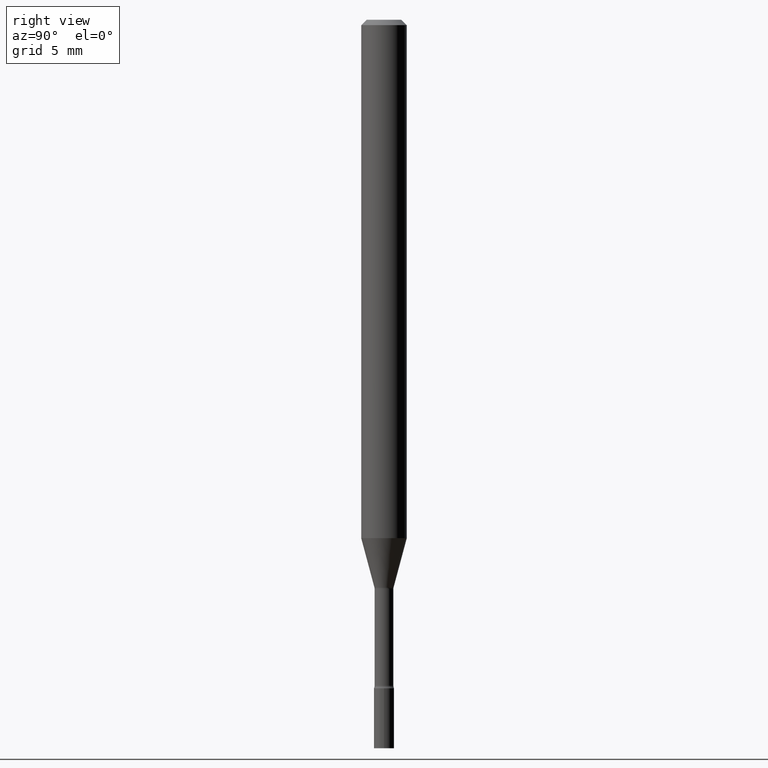
[diagram: clean part render]
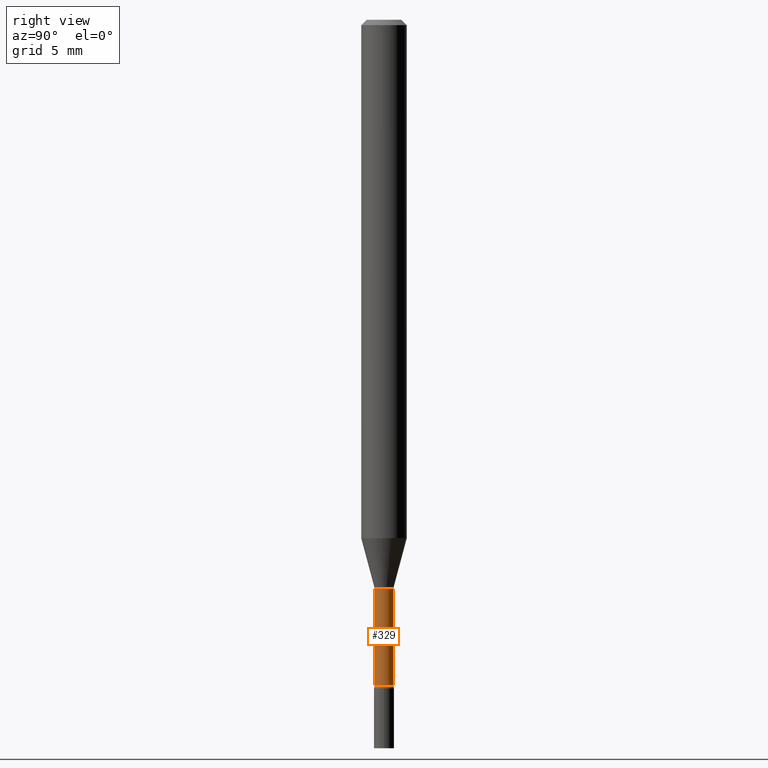
[diagram: same view with one face highlighted and labeled with its STEP entity id]
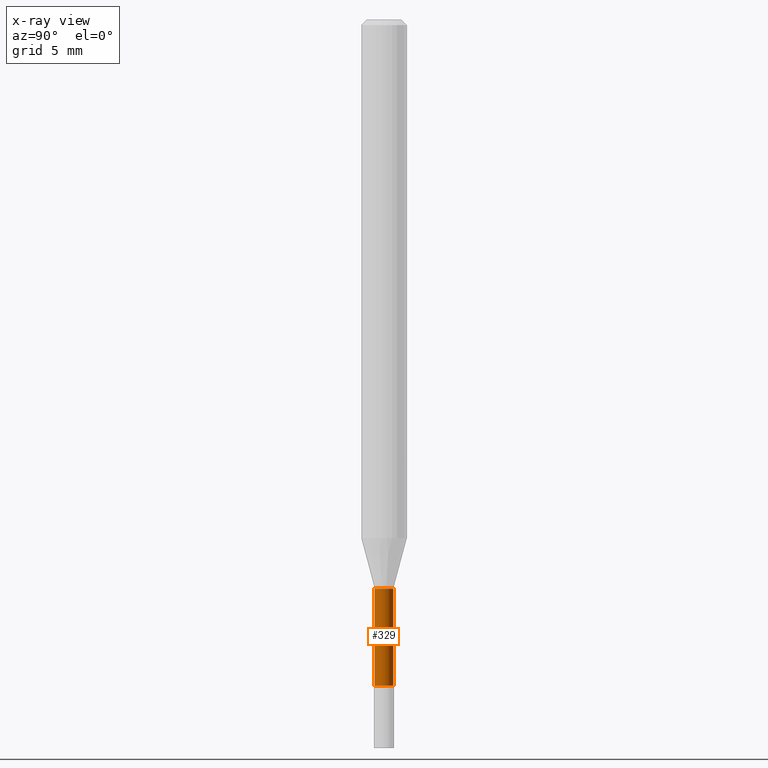
[diagram: x-ray of the same camera — body ghosted, the highlighted face saturated]
A machine part, right view. The second image highlights one B-rep face of the part: STEP entity #329.
The next image is the same camera in x-ray: the body ghosted, the highlighted face saturated — about 0% of this face is hidden behind the body in this view.
In plain terms, the highlighted cylindrical surface (edge-blend (fillet) strip) has radius 0.6566 mm, axis along (-0, 0, 1).
Its self-contained STEP definition (entity closure, byte-faithful):
#33 = EDGE_LOOP ( 'NONE', ( #80, #472, #462, #509 ) ) ;
#41 = CARTESIAN_POINT ( 'NONE',  ( -1.805095852181899771E-16, -0.02585000000000000492, 9.025171756218928111E-17 ) ) ;
#70 = DIRECTION ( 'NONE',  ( -2.445551873642688287E-29, 3.491362381516025357E-15, 1.000000000000000000 ) ) ;
#80 = ORIENTED_EDGE ( 'NONE', *, *, #408, .T. ) ;
#84 = DIRECTION ( 'NONE',  ( -2.445551873642688007E-29, 3.491362381516025751E-15, 1.000000000000000000 ) ) ;
#112 = CARTESIAN_POINT ( 'NONE',  ( -1.805095852181453325E-16, -0.02585000000000639564, -1.828160592130893436 ) ) ;
#120 = CYLINDRICAL_SURFACE ( 'NONE', #460, 0.02585000000000000492 ) ;
#125 = EDGE_CURVE ( 'NONE', #399, #391, #127, .T. ) ;
#127 = CIRCLE ( 'NONE', #175, 0.02584999999999999798 ) ;
#135 = DIRECTION ( 'NONE',  ( -2.445551873642688007E-29, 3.491362381516025751E-15, 1.000000000000000000 ) ) ;
#149 = DIRECTION ( 'NONE',  ( -6.982962677686266711E-15, -1.000000000000000000, 0.000000000000000000 ) ) ;
#165 = FACE_OUTER_BOUND ( 'NONE', #33, .T. ) ;
#175 = AXIS2_PLACEMENT_3D ( 'NONE', #353, #501, #149 ) ;
#178 = LINE ( 'NONE', #41, #449 ) ;
#194 = CARTESIAN_POINT ( 'NONE',  ( 1.836752971939858837E-16, 0.02585000000000000492, -9.025171756218928111E-17 ) ) ;
#233 = CARTESIAN_POINT ( 'NONE',  ( 1.836752971940306269E-16, 0.02584999999999454401, -1.561974787463811021 ) ) ;
#267 = EDGE_CURVE ( 'NONE', #360, #399, #178, .T. ) ;
#300 = VERTEX_POINT ( 'NONE', #435 ) ;
#302 = CARTESIAN_POINT ( 'NONE',  ( 4.470861561405432564E-29, -6.382771118735863784E-15, -1.828160592130893436 ) ) ;
#303 = DIRECTION ( 'NONE',  ( -6.982962677686265922E-15, -1.000000000000000000, 0.000000000000000000 ) ) ;
#329 = ADVANCED_FACE ( 'NONE', ( #165 ), #120, .T. ) ;
#353 = CARTESIAN_POINT ( 'NONE',  ( 3.819890368064762406E-29, -5.453420013827639268E-15, -1.561974787463811021 ) ) ;
#360 = VERTEX_POINT ( 'NONE', #112 ) ;
#367 = AXIS2_PLACEMENT_3D ( 'NONE', #302, #135, #303 ) ;
#386 = EDGE_CURVE ( 'NONE', #300, #391, #505, .T. ) ;
#391 = VERTEX_POINT ( 'NONE', #233 ) ;
#399 = VERTEX_POINT ( 'NONE', #493 ) ;
#408 = EDGE_CURVE ( 'NONE', #360, #300, #489, .T. ) ;
#410 = VECTOR ( 'NONE', #70, 39.37007874015748143 ) ;
#423 = CARTESIAN_POINT ( 'NONE',  ( 0.000000000000000000, 0.000000000000000000, 0.000000000000000000 ) ) ;
#435 = CARTESIAN_POINT ( 'NONE',  ( 1.895372747640516213E-16, 0.02584999999999363154, -1.828160592130893436 ) ) ;
#449 = VECTOR ( 'NONE', #512, 39.37007874015748143 ) ;
#460 = AXIS2_PLACEMENT_3D ( 'NONE', #423, #84, #513 ) ;
#462 = ORIENTED_EDGE ( 'NONE', *, *, #125, .F. ) ;
#472 = ORIENTED_EDGE ( 'NONE', *, *, #386, .T. ) ;
#489 = CIRCLE ( 'NONE', #367, 0.02585000000000001186 ) ;
#493 = CARTESIAN_POINT ( 'NONE',  ( -1.805095852181517913E-16, -0.02585000000000545542, -1.561974787463811021 ) ) ;
#501 = DIRECTION ( 'NONE',  ( -2.445551873642688007E-29, 3.491362381516025751E-15, 1.000000000000000000 ) ) ;
#505 = LINE ( 'NONE', #194, #410 ) ;
#509 = ORIENTED_EDGE ( 'NONE', *, *, #267, .F. ) ;
#512 = DIRECTION ( 'NONE',  ( -2.445551873642688287E-29, 3.491362381516025357E-15, 1.000000000000000000 ) ) ;
#513 = DIRECTION ( 'NONE',  ( -6.982962677686264344E-15, -1.000000000000000000, 3.491362381516025751E-15 ) ) ;